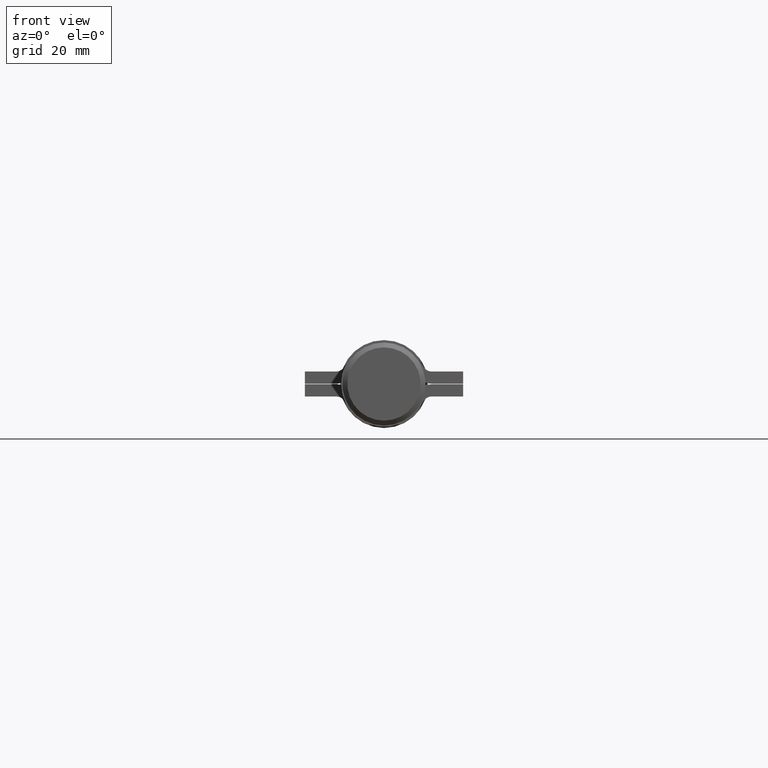
[diagram: clean part render]
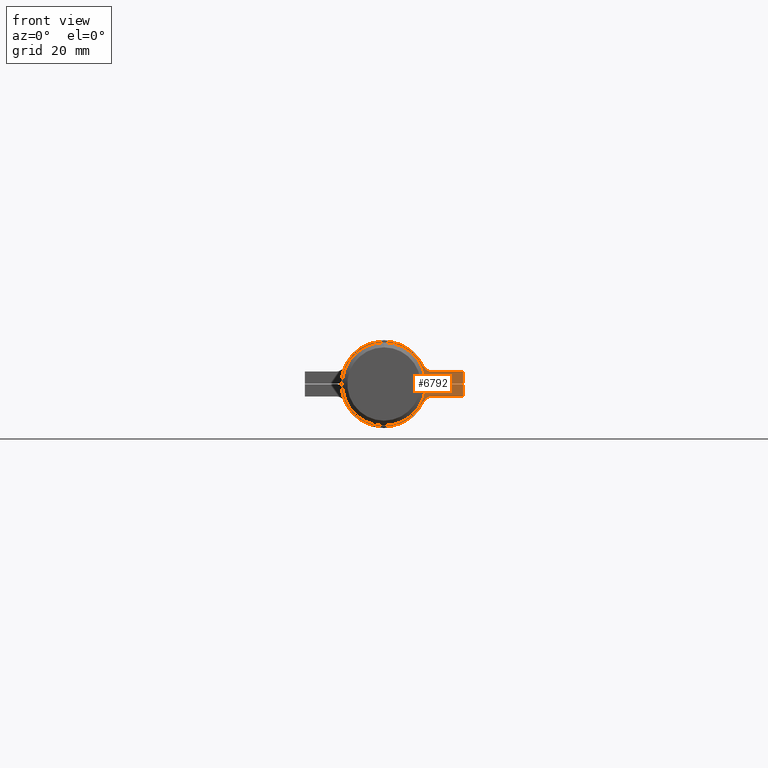
[diagram: same view with one face highlighted and labeled with its STEP entity id]
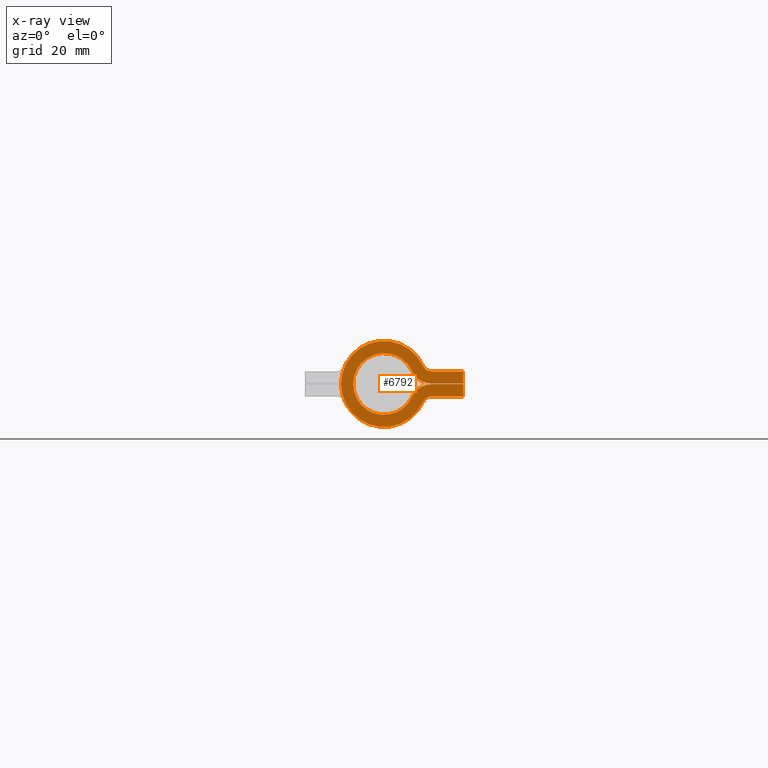
[diagram: x-ray of the same camera — body ghosted, the highlighted face saturated]
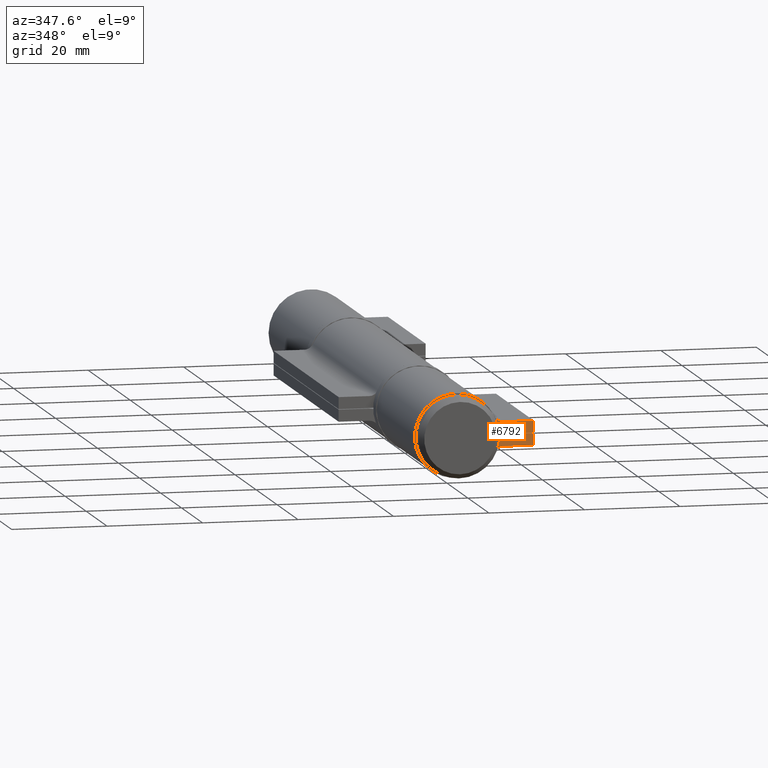
[diagram: same view with one face highlighted and labeled with its STEP entity id]
A machine part, front view. The second image highlights one B-rep face of the part: STEP entity #6792.
The next image is the same camera in x-ray: the body ghosted, the highlighted face saturated — about 0% of this face is hidden behind the body in this view.
A second angle (auxiliary view) of the same face is appended — the face is thin or edge-on in the first view.
In plain terms, the highlighted planar face has unit normal (0, 1, 0).
Its self-contained STEP definition (entity closure, byte-faithful):
#331 = CARTESIAN_POINT ( 'NONE',  ( -4.550000000000028244, -18.00000000000000355, -9.794769012079926895 ) ) ;
#454 = AXIS2_PLACEMENT_3D ( 'NONE', #9774, #674, #1661 ) ;
#510 = EDGE_CURVE ( 'NONE', #11658, #6233, #10037, .T. ) ;
#525 = VERTEX_POINT ( 'NONE', #11106 ) ;
#580 = DIRECTION ( 'NONE',  ( -8.780789920575299847E-17, 0.000000000000000000, 1.000000000000000000 ) ) ;
#674 = DIRECTION ( 'NONE',  ( 0.000000000000000000, 1.000000000000000000, 0.000000000000000000 ) ) ;
#784 = DIRECTION ( 'NONE',  ( -1.000000000000000000, 0.000000000000000000, 0.000000000000000000 ) ) ;
#837 = CARTESIAN_POINT ( 'NONE',  ( -2.654166666666679664, -18.00000000000000355, -5.713615257046620322 ) ) ;
#1207 = EDGE_CURVE ( 'NONE', #11161, #4550, #3251, .T. ) ;
#1212 = ORIENTED_EDGE ( 'NONE', *, *, #5108, .F. ) ;
#1610 = CARTESIAN_POINT ( 'NONE',  ( 2.550000000000014921, -18.00000000000000355, -16.20000000000011653 ) ) ;
#1661 = DIRECTION ( 'NONE',  ( 0.000000000000000000, 0.000000000000000000, 1.000000000000000000 ) ) ;
#1666 = LINE ( 'NONE', #7871, #3503 ) ;
#1818 = LINE ( 'NONE', #9728, #9881 ) ;
#1862 = DIRECTION ( 'NONE',  ( 1.354145915462210684E-16, 0.000000000000000000, -1.000000000000000000 ) ) ;
#1879 = EDGE_CURVE ( 'NONE', #9907, #525, #1818, .T. ) ;
#2107 = VERTEX_POINT ( 'NONE', #5809 ) ;
#2122 = ORIENTED_EDGE ( 'NONE', *, *, #5986, .F. ) ;
#2360 = EDGE_CURVE ( 'NONE', #10918, #10077, #1666, .T. ) ;
#2529 = ORIENTED_EDGE ( 'NONE', *, *, #6137, .F. ) ;
#2532 = DIRECTION ( 'NONE',  ( -1.000000000000000000, 0.000000000000000000, 0.000000000000000000 ) ) ;
#2646 = ORIENTED_EDGE ( 'NONE', *, *, #3160, .F. ) ;
#2674 = CARTESIAN_POINT ( 'NONE',  ( 0.05000000000000015543, -18.00000000000000355, -16.20000000000011653 ) ) ;
#2692 = CARTESIAN_POINT ( 'NONE',  ( 2.550000000000014921, -18.00000000000000355, -16.20000000000011653 ) ) ;
#2779 = DIRECTION ( 'NONE',  ( 0.000000000000000000, 1.000000000000000000, 0.000000000000000000 ) ) ;
#3160 = EDGE_CURVE ( 'NONE', #10077, #8065, #7046, .T. ) ;
#3239 = CARTESIAN_POINT ( 'NONE',  ( -0.05000000000000015543, -18.00000000000000355, -16.20000000000011653 ) ) ;
#3251 = CIRCLE ( 'NONE', #7758, 2.000000000000015543 ) ;
#3340 = CARTESIAN_POINT ( 'NONE',  ( 2.550000000000014033, -18.00000000000000355, -9.794769012079928672 ) ) ;
#3357 = ORIENTED_EDGE ( 'NONE', *, *, #3627, .F. ) ;
#3463 = CIRCLE ( 'NONE', #4688, 8.800000000000066436 ) ;
#3503 = VECTOR ( 'NONE', #2532, 1000.000000000000000 ) ;
#3566 = EDGE_LOOP ( 'NONE', ( #11137, #8731, #8903, #1212, #8203, #3357, #10299, #2529, #7345, #2122, #9095, #2646 ) ) ;
#3605 = CARTESIAN_POINT ( 'NONE',  ( -0.04999999999999959338, -18.00000000000000355, -9.794769012079926895 ) ) ;
#3627 = EDGE_CURVE ( 'NONE', #525, #11161, #9013, .T. ) ;
#3892 = DIRECTION ( 'NONE',  ( 0.000000000000000000, 1.000000000000000000, 0.000000000000000000 ) ) ;
#4180 = DIRECTION ( 'NONE',  ( 0.000000000000000000, 0.000000000000000000, 1.000000000000000000 ) ) ;
#4484 = VECTOR ( 'NONE', #10655, 1000.000000000000000 ) ;
#4550 = VERTEX_POINT ( 'NONE', #11621 ) ;
#4688 = AXIS2_PLACEMENT_3D ( 'NONE', #7405, #8276, #5626 ) ;
#4725 = CARTESIAN_POINT ( 'NONE',  ( 4.550000000000028244, -18.00000000000000355, -9.794769012079926895 ) ) ;
#4871 = FACE_OUTER_BOUND ( 'NONE', #3566, .T. ) ;
#5089 = AXIS2_PLACEMENT_3D ( 'NONE', #4725, #2779, #9232 ) ;
#5094 = EDGE_CURVE ( 'NONE', #8065, #2107, #10257, .T. ) ;
#5108 = EDGE_CURVE ( 'NONE', #4550, #8810, #3463, .T. ) ;
#5143 = CARTESIAN_POINT ( 'NONE',  ( -0.05000000000000015543, -18.00000000000000355, -16.20000000000011653 ) ) ;
#5626 = DIRECTION ( 'NONE',  ( 0.000000000000000000, 0.000000000000000000, 1.000000000000000000 ) ) ;
#5809 = CARTESIAN_POINT ( 'NONE',  ( 2.654166666666679220, -18.00000000000000355, -5.713615257046620322 ) ) ;
#5897 = CIRCLE ( 'NONE', #7429, 2.000000000000015543 ) ;
#5934 = DIRECTION ( 'NONE',  ( 0.000000000000000000, 0.000000000000000000, -1.000000000000000000 ) ) ;
#5965 = CARTESIAN_POINT ( 'NONE',  ( 0.05000000000000015543, -18.00000000000000355, -16.20000000000011653 ) ) ;
#5986 = EDGE_CURVE ( 'NONE', #2107, #11658, #7142, .T. ) ;
#6093 = DIRECTION ( 'NONE',  ( 0.000000000000000000, -1.000000000000000000, 0.000000000000000000 ) ) ;
#6105 = VERTEX_POINT ( 'NONE', #3340 ) ;
#6137 = EDGE_CURVE ( 'NONE', #6233, #9907, #11101, .T. ) ;
#6233 = VERTEX_POINT ( 'NONE', #3605 ) ;
#6792 = ADVANCED_FACE ( 'NONE', ( #4871 ), #7090, .F. ) ;
#6952 = DIRECTION ( 'NONE',  ( -8.780789920575299847E-17, 0.000000000000000000, -1.000000000000000000 ) ) ;
#7046 = LINE ( 'NONE', #5965, #9157 ) ;
#7090 = PLANE ( 'NONE',  #454 ) ;
#7142 = CIRCLE ( 'NONE', #9993, 6.300000000000048672 ) ;
#7234 = AXIS2_PLACEMENT_3D ( 'NONE', #331, #3892, #9359 ) ;
#7345 = ORIENTED_EDGE ( 'NONE', *, *, #510, .F. ) ;
#7403 = CARTESIAN_POINT ( 'NONE',  ( -2.550000000000013145, -18.00000000000000355, -9.794769012079928672 ) ) ;
#7405 = CARTESIAN_POINT ( 'NONE',  ( 0.000000000000000000, -18.00000000000000355, 0.000000000000000000 ) ) ;
#7429 = AXIS2_PLACEMENT_3D ( 'NONE', #10437, #6093, #5934 ) ;
#7758 = AXIS2_PLACEMENT_3D ( 'NONE', #8099, #10831, #8909 ) ;
#7871 = CARTESIAN_POINT ( 'NONE',  ( 2.550000000000014921, -18.00000000000000355, -16.20000000000011653 ) ) ;
#8065 = VERTEX_POINT ( 'NONE', #10368 ) ;
#8099 = CARTESIAN_POINT ( 'NONE',  ( -4.550000000000029132, -18.00000000000000355, -9.794769012079928672 ) ) ;
#8122 = VECTOR ( 'NONE', #6952, 1000.000000000000000 ) ;
#8124 = EDGE_CURVE ( 'NONE', #8810, #6105, #5897, .T. ) ;
#8203 = ORIENTED_EDGE ( 'NONE', *, *, #1207, .F. ) ;
#8276 = DIRECTION ( 'NONE',  ( 0.000000000000000000, 1.000000000000000000, 0.000000000000000000 ) ) ;
#8607 = CARTESIAN_POINT ( 'NONE',  ( 0.000000000000000000, -18.00000000000000355, 0.000000000000000000 ) ) ;
#8731 = ORIENTED_EDGE ( 'NONE', *, *, #11657, .F. ) ;
#8810 = VERTEX_POINT ( 'NONE', #9318 ) ;
#8876 = CARTESIAN_POINT ( 'NONE',  ( -2.550000000000014921, -18.00000000000000355, -16.20000000000011653 ) ) ;
#8903 = ORIENTED_EDGE ( 'NONE', *, *, #8124, .F. ) ;
#8909 = DIRECTION ( 'NONE',  ( 0.000000000000000000, 0.000000000000000000, -1.000000000000000000 ) ) ;
#9013 = LINE ( 'NONE', #8876, #4484 ) ;
#9095 = ORIENTED_EDGE ( 'NONE', *, *, #5094, .F. ) ;
#9157 = VECTOR ( 'NONE', #580, 1000.000000000000000 ) ;
#9232 = DIRECTION ( 'NONE',  ( 0.000000000000000000, 0.000000000000000000, 1.000000000000000000 ) ) ;
#9318 = CARTESIAN_POINT ( 'NONE',  ( 3.707407407407436128, -18.00000000000000355, -7.980922898731804160 ) ) ;
#9359 = DIRECTION ( 'NONE',  ( 0.000000000000000000, 0.000000000000000000, -1.000000000000000000 ) ) ;
#9532 = VECTOR ( 'NONE', #1862, 1000.000000000000000 ) ;
#9728 = CARTESIAN_POINT ( 'NONE',  ( -2.550000000000014921, -18.00000000000000355, -16.20000000000011653 ) ) ;
#9774 = CARTESIAN_POINT ( 'NONE',  ( 4.550000000000028244, -18.00000000000000355, -9.794769012079926895 ) ) ;
#9881 = VECTOR ( 'NONE', #784, 1000.000000000000000 ) ;
#9907 = VERTEX_POINT ( 'NONE', #3239 ) ;
#9936 = LINE ( 'NONE', #2692, #9532 ) ;
#9993 = AXIS2_PLACEMENT_3D ( 'NONE', #8607, #11383, #4180 ) ;
#10037 = CIRCLE ( 'NONE', #7234, 4.500000000000033751 ) ;
#10077 = VERTEX_POINT ( 'NONE', #2674 ) ;
#10257 = CIRCLE ( 'NONE', #5089, 4.500000000000034639 ) ;
#10299 = ORIENTED_EDGE ( 'NONE', *, *, #1879, .F. ) ;
#10368 = CARTESIAN_POINT ( 'NONE',  ( 0.04999999999999842071, -18.00000000000000355, -9.794769012079926895 ) ) ;
#10437 = CARTESIAN_POINT ( 'NONE',  ( 4.550000000000029132, -18.00000000000000355, -9.794769012079928672 ) ) ;
#10655 = DIRECTION ( 'NONE',  ( 1.354145915462211177E-16, 0.000000000000000000, 1.000000000000000000 ) ) ;
#10831 = DIRECTION ( 'NONE',  ( 0.000000000000000000, -1.000000000000000000, 0.000000000000000000 ) ) ;
#10918 = VERTEX_POINT ( 'NONE', #1610 ) ;
#11101 = LINE ( 'NONE', #5143, #8122 ) ;
#11106 = CARTESIAN_POINT ( 'NONE',  ( -2.550000000000014921, -18.00000000000000355, -16.20000000000011653 ) ) ;
#11137 = ORIENTED_EDGE ( 'NONE', *, *, #2360, .F. ) ;
#11161 = VERTEX_POINT ( 'NONE', #7403 ) ;
#11383 = DIRECTION ( 'NONE',  ( 0.000000000000000000, -1.000000000000000000, 0.000000000000000000 ) ) ;
#11621 = CARTESIAN_POINT ( 'NONE',  ( -3.707407407407434796, -18.00000000000000355, -7.980922898731804160 ) ) ;
#11657 = EDGE_CURVE ( 'NONE', #6105, #10918, #9936, .T. ) ;
#11658 = VERTEX_POINT ( 'NONE', #837 ) ;